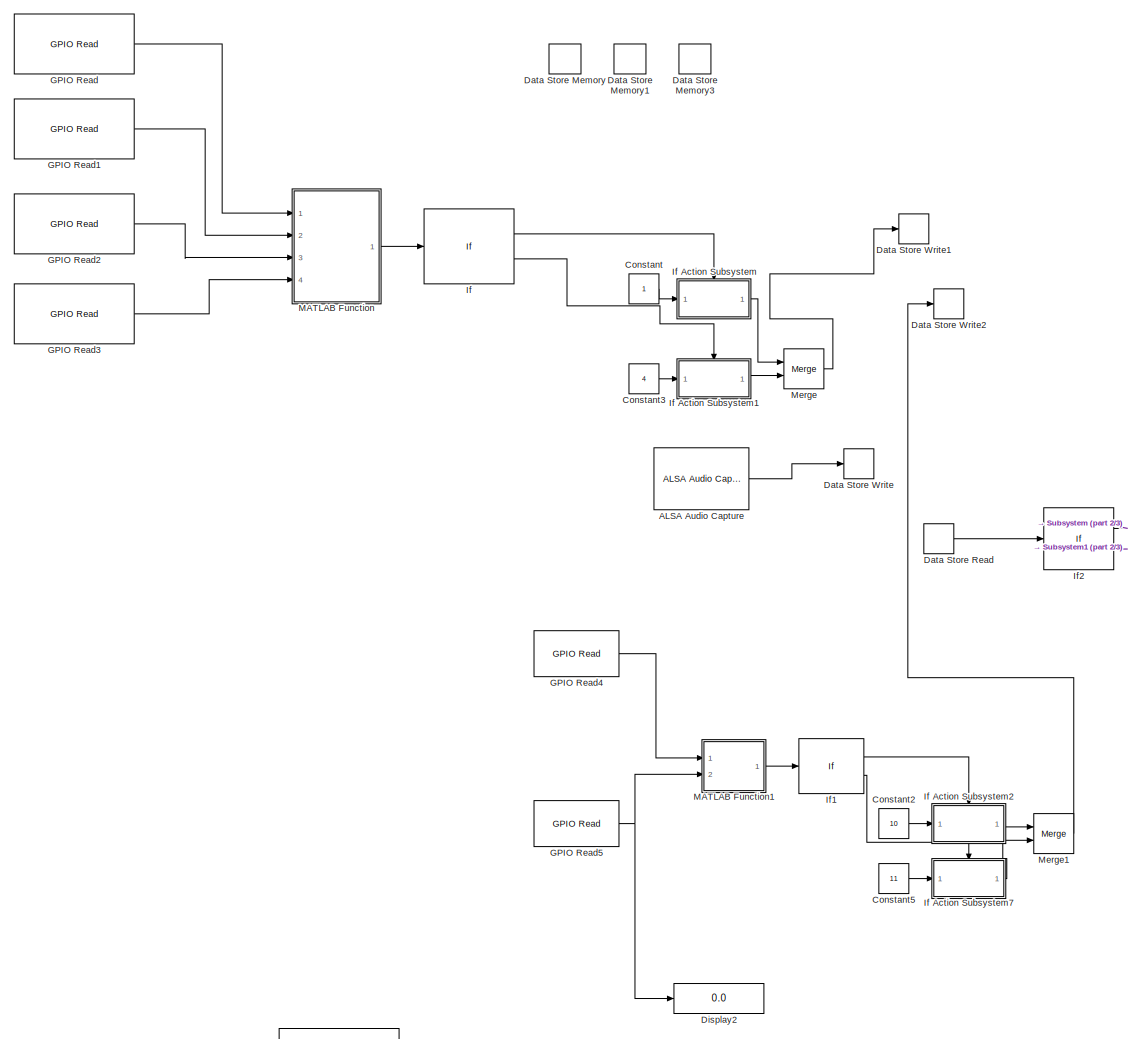
[diagram: root canvas - part 1/3, left side, full height]
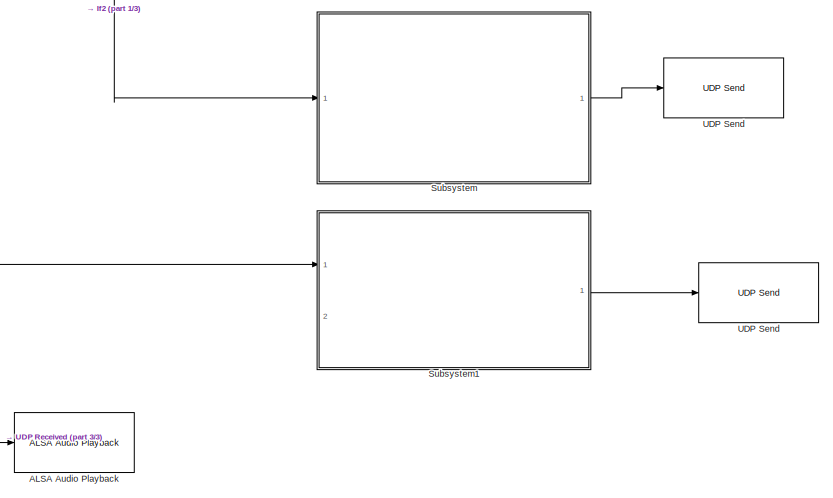
[diagram: root canvas - part 2/3, bottom right region]
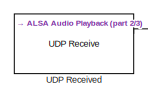
[diagram: root canvas - part 3/3, bottom left region]
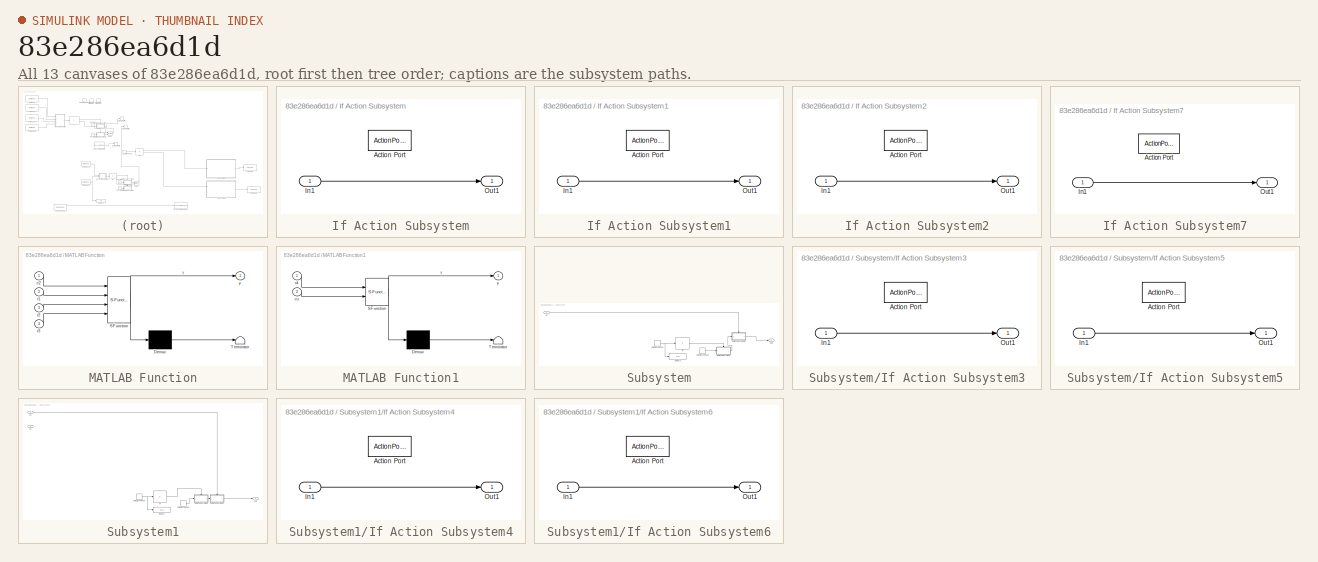
[diagram: thumbnail index - all 13 canvases of the model, root first then tree order]
MODEL slx_83e286ea6d1d
KIND model
CONFIG AbsTol = auto
CONFIG EnableMultiTasking = on
CONFIG FixedStep = auto
CONFIG MaxStep = auto
CONFIG MinStep = auto
CONFIG RelTol = 1e-3
CONFIG SampleTimeConstraint = Unconstrained
CONFIG Solver = FixedStepAuto
CONFIG SolverName = FixedStepAuto
CONFIG StartTime = 0.0
CONFIG StopTime = 10
BLOCK [Reference] ALSA Audio Capture  REF=embdlinuxlib/ALSA Audio Capture
  Ports = [0, 1]
  SourceBlock = embdlinuxlib/ALSA Audio Capture
  SourceProductBaseCode = RASPPI
  SourceProductName = Simulink Support Package for Raspberry Pi Hardware
  SourceType = codertarget.linux.blocks.ALSAAudioCapture
BLOCK [Reference] ALSA Audio Playback  REF=embdlinuxlib/ALSA Audio Playback
  Ports = [1]
  SourceBlock = embdlinuxlib/ALSA Audio Playback
  SourceProductBaseCode = RASPPI
  SourceProductName = Simulink Support Package for Raspberry Pi Hardware
  SourceType = codertarget.linux.blocks.ALSAAudioPlayback
BLOCK [Constant] Constant
BLOCK [Constant] Constant2
  Value = 10
BLOCK [Constant] Constant3
  Value = 4
BLOCK [Constant] Constant5
  Value = 11
BLOCK [DataStoreMemory] Data Store Memory
  ReadBeforeWriteMsg = warning
  ShowAdditionalParam = off
  WriteAfterReadMsg = warning
  WriteAfterWriteMsg = warning
BLOCK [DataStoreMemory] Data Store Memory1
  DataStoreName = A1
  ReadBeforeWriteMsg = warning
  ShowAdditionalParam = off
  WriteAfterReadMsg = warning
  WriteAfterWriteMsg = warning
BLOCK [DataStoreMemory] Data Store Memory3
  DataStoreName = A3
  Dimensions = [4410,1]
  ReadBeforeWriteMsg = warning
  ShowAdditionalParam = off
  WriteAfterReadMsg = warning
  WriteAfterWriteMsg = warning
BLOCK [DataStoreRead] Data Store Read
  Ports = [0, 1]
BLOCK [DataStoreWrite] Data Store Write
  DataStoreName = A3
  Ports = [1]
BLOCK [DataStoreWrite] Data Store Write1
  Ports = [1]
BLOCK [DataStoreWrite] Data Store Write2
  DataStoreName = A1
  Ports = [1]
BLOCK [Display] Display2
  Decimation = 1
  Ports = [1]
BLOCK [Reference] GPIO Read  REF=embdlinuxlib/GPIO Read
  Ports = [0, 1]
  SourceBlock = embdlinuxlib/GPIO Read
  SourceProductBaseCode = RASPPI
  SourceProductName = Simulink Support Package for Raspberry Pi Hardware
  SourceType = GPIO Read
BLOCK [Reference] GPIO Read1  REF=embdlinuxlib/GPIO Read
  Ports = [0, 1]
  SourceBlock = embdlinuxlib/GPIO Read
  SourceProductBaseCode = RASPPI
  SourceProductName = Simulink Support Package for Raspberry Pi Hardware
  SourceType = GPIO Read
BLOCK [Reference] GPIO Read2  REF=embdlinuxlib/GPIO Read
  Ports = [0, 1]
  SourceBlock = embdlinuxlib/GPIO Read
  SourceProductBaseCode = RASPPI
  SourceProductName = Simulink Support Package for Raspberry Pi Hardware
  SourceType = GPIO Read
BLOCK [Reference] GPIO Read3  REF=embdlinuxlib/GPIO Read
  Ports = [0, 1]
  SourceBlock = embdlinuxlib/GPIO Read
  SourceProductBaseCode = RASPPI
  SourceProductName = Simulink Support Package for Raspberry Pi Hardware
  SourceType = GPIO Read
BLOCK [Reference] GPIO Read4  REF=embdlinuxlib/GPIO Read
  Ports = [0, 1]
  SourceBlock = embdlinuxlib/GPIO Read
  SourceProductBaseCode = RASPPI
  SourceProductName = Simulink Support Package for Raspberry Pi Hardware
  SourceType = GPIO Read
BLOCK [Reference] GPIO Read5  REF=embdlinuxlib/GPIO Read
  Ports = [0, 1]
  SourceBlock = embdlinuxlib/GPIO Read
  SourceProductBaseCode = RASPPI
  SourceProductName = Simulink Support Package for Raspberry Pi Hardware
  SourceType = GPIO Read
BLOCK [If] If
  ElseIfExpressions = u1 == 4
  IfExpression = u1 == 1
  Ports = [1, 2]
  ShowElse = off
BLOCK [SubSystem] If Action Subsystem
  Ports = [1, 1, 0, 0, 0, 0, 0, 1]
  RequestExecContextInheritance = off
  TreatAsAtomicUnit = on
BLOCK [ActionPort] If Action Subsystem/Action Port
  ActionType = then
  InitializeStates = reset
BLOCK [Inport] If Action Subsystem/In1
  IconDisplay = Port number
BLOCK [Outport] If Action Subsystem/Out1
  IconDisplay = Port number
BLOCK [SubSystem] If Action Subsystem1
  Ports = [1, 1, 0, 0, 0, 0, 0, 1]
  RequestExecContextInheritance = off
  TreatAsAtomicUnit = on
BLOCK [ActionPort] If Action Subsystem1/Action Port
  ActionType = elseif
  InitializeStates = reset
BLOCK [Inport] If Action Subsystem1/In1
  IconDisplay = Port number
BLOCK [Outport] If Action Subsystem1/Out1
  IconDisplay = Port number
BLOCK [SubSystem] If Action Subsystem2
  Ports = [1, 1, 0, 0, 0, 0, 0, 1]
  RequestExecContextInheritance = off
  TreatAsAtomicUnit = on
BLOCK [ActionPort] If Action Subsystem2/Action Port
  ActionType = then
  InitializeStates = reset
BLOCK [Inport] If Action Subsystem2/In1
  IconDisplay = Port number
BLOCK [Outport] If Action Subsystem2/Out1
  IconDisplay = Port number
BLOCK [SubSystem] If Action Subsystem7
  Ports = [1, 1, 0, 0, 0, 0, 0, 1]
  RequestExecContextInheritance = off
  TreatAsAtomicUnit = on
BLOCK [ActionPort] If Action Subsystem7/Action Port
  ActionType = elseif
  InitializeStates = reset
BLOCK [Inport] If Action Subsystem7/In1
  IconDisplay = Port number
BLOCK [Outport] If Action Subsystem7/Out1
  IconDisplay = Port number
BLOCK [If] If1
  ElseIfExpressions = u1 == 11
  IfExpression = u1 == 10
  Ports = [1, 2]
  ShowElse = off
BLOCK [If] If2
  ElseIfExpressions = u1 == 4
  IfExpression = u1 == 1
  Ports = [1, 2]
  ShowElse = off
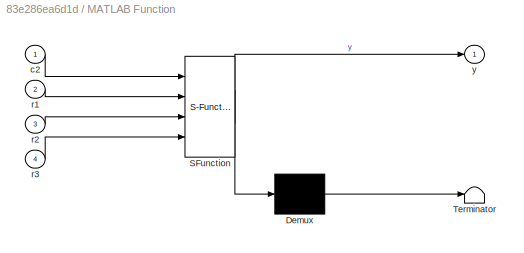
BLOCK [SubSystem] MATLAB Function
  ErrorFcn = Stateflow.Translate.translate
  PermitHierarchicalResolution = ExplicitOnly
  Ports = [4, 1]
  RequestExecContextInheritance = off
  SFBlockType = MATLAB Function
  TreatAsAtomicUnit = on
BLOCK [Demux] MATLAB Function/ Demux 
  Outputs = 1
  Ports = [1, 1]
BLOCK [S-Function] MATLAB Function/ SFunction 
  EnableBusSupport = on
  FunctionName = sf_sfun
  PortCounts = [4 2]
  Ports = [4, 2]
  SFcnIsStateOwnerBlock = off
  SFunctionDeploymentMode = off
  Tag = Stateflow S-Function untitled1 2
BLOCK [Terminator] MATLAB Function/ Terminator 
BLOCK [Inport] MATLAB Function/c2
  IconDisplay = Port number
BLOCK [Inport] MATLAB Function/r1
  IconDisplay = Port number
  Port = 2
BLOCK [Inport] MATLAB Function/r2
  IconDisplay = Port number
  Port = 3
BLOCK [Inport] MATLAB Function/r3
  IconDisplay = Port number
  Port = 4
BLOCK [Outport] MATLAB Function/y
  IconDisplay = Port number
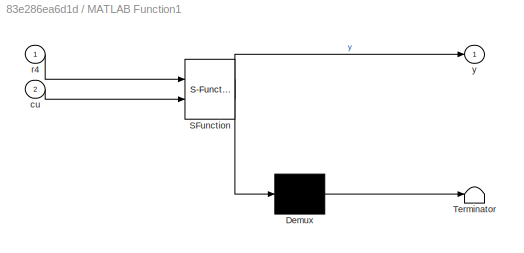
BLOCK [SubSystem] MATLAB Function1
  ErrorFcn = Stateflow.Translate.translate
  PermitHierarchicalResolution = ExplicitOnly
  Ports = [2, 1]
  RequestExecContextInheritance = off
  SFBlockType = MATLAB Function
  TreatAsAtomicUnit = on
BLOCK [Demux] MATLAB Function1/ Demux 
  Outputs = 1
  Ports = [1, 1]
BLOCK [S-Function] MATLAB Function1/ SFunction 
  EnableBusSupport = on
  FunctionName = sf_sfun
  PortCounts = [2 2]
  Ports = [2, 2]
  SFcnIsStateOwnerBlock = off
  SFunctionDeploymentMode = off
  Tag = Stateflow S-Function untitled1 1
BLOCK [Terminator] MATLAB Function1/ Terminator 
BLOCK [Inport] MATLAB Function1/cu
  IconDisplay = Port number
  Port = 2
BLOCK [Inport] MATLAB Function1/r4
  IconDisplay = Port number
BLOCK [Outport] MATLAB Function1/y
  IconDisplay = Port number
BLOCK [Merge] Merge
  Ports = [2, 1]
BLOCK [Merge] Merge1
  Ports = [2, 1]
BLOCK [SubSystem] Subsystem
  Ports = [1, 1]
  RequestExecContextInheritance = off
BLOCK [DataStoreRead] Subsystem/Data Store Read1
  DataStoreName = A1
  Ports = [0, 1]
BLOCK [DataStoreRead] Subsystem/Data Store Read3
  DataStoreName = A3
  Ports = [0, 1]
BLOCK [Display] Subsystem/Display3
  Decimation = 1
  Ports = [1]
BLOCK [SubSystem] Subsystem/If Action Subsystem3
  Ports = [1, 1, 0, 0, 0, 0, 0, 1]
  RequestExecContextInheritance = off
  TreatAsAtomicUnit = on
BLOCK [ActionPort] Subsystem/If Action Subsystem3/Action Port
  ActionType = then
  InitializeStates = reset
BLOCK [Inport] Subsystem/If Action Subsystem3/In1
  IconDisplay = Port number
BLOCK [Outport] Subsystem/If Action Subsystem3/Out1
  IconDisplay = Port number
BLOCK [SubSystem] Subsystem/If Action Subsystem5
  Ports = [1, 1, 0, 0, 0, 0, 0, 1]
  RequestExecContextInheritance = off
  TreatAsAtomicUnit = on
BLOCK [ActionPort] Subsystem/If Action Subsystem5/Action Port
  ActionType = then
  InitializeStates = reset
BLOCK [Inport] Subsystem/If Action Subsystem5/In1
  IconDisplay = Port number
BLOCK [Outport] Subsystem/If Action Subsystem5/Out1
  IconDisplay = Port number
BLOCK [If] Subsystem/If3
  IfExpression = u1 == 10
  Ports = [1, 1]
  ShowElse = off
BLOCK [Inport] Subsystem/In1
  IconDisplay = Port number
BLOCK [Outport] Subsystem/Out1
  IconDisplay = Port number
BLOCK [SubSystem] Subsystem1
  Ports = [2, 1]
  RequestExecContextInheritance = off
BLOCK [DataStoreRead] Subsystem1/Data Store Read2
  DataStoreName = A1
  Ports = [0, 1]
BLOCK [DataStoreRead] Subsystem1/Data Store Read4
  DataStoreName = A3
  Ports = [0, 1]
BLOCK [Display] Subsystem1/Display4
  Decimation = 1
  Ports = [1]
BLOCK [SubSystem] Subsystem1/If Action Subsystem4
  Ports = [1, 1, 0, 0, 0, 0, 0, 1]
  RequestExecContextInheritance = off
  TreatAsAtomicUnit = on
BLOCK [ActionPort] Subsystem1/If Action Subsystem4/Action Port
  ActionType = elseif
  InitializeStates = reset
BLOCK [Inport] Subsystem1/If Action Subsystem4/In1
  IconDisplay = Port number
BLOCK [Outport] Subsystem1/If Action Subsystem4/Out1
  IconDisplay = Port number
BLOCK [SubSystem] Subsystem1/If Action Subsystem6
  Ports = [1, 1, 0, 0, 0, 0, 0, 1]
  RequestExecContextInheritance = off
  TreatAsAtomicUnit = on
BLOCK [ActionPort] Subsystem1/If Action Subsystem6/Action Port
  ActionType = then
  InitializeStates = reset
BLOCK [Inport] Subsystem1/If Action Subsystem6/In1
  IconDisplay = Port number
BLOCK [Outport] Subsystem1/If Action Subsystem6/Out1
  IconDisplay = Port number
BLOCK [If] Subsystem1/If4
  IfExpression = u1 == 10
  Ports = [1, 1]
  ShowElse = off
BLOCK [Inport] Subsystem1/In1
  IconDisplay = Port number
BLOCK [Inport] Subsystem1/In2
  IconDisplay = Port number
  Port = 2
BLOCK [Outport] Subsystem1/Out1
  IconDisplay = Port number
BLOCK [Reference] UDP Received  REF=embdlinuxlib/UDP Receive
  Ports = [0, 2]
  SourceBlock = embdlinuxlib/UDP Receive
  SourceProductBaseCode = RASPPI
  SourceProductName = Simulink Support Package for Raspberry Pi Hardware
  SourceType = UDP Receive
BLOCK [Reference] UDP Send  REF=embdlinuxlib/UDP Send
  Ports = [1]
  SourceBlock = embdlinuxlib/UDP Send
  SourceProductBaseCode = RASPPI
  SourceProductName = Simulink Support Package for Raspberry Pi Hardware
  SourceType = UDP Send
BLOCK [Reference] UDP Send   REF=embdlinuxlib/UDP Send
  Ports = [1]
  SourceBlock = embdlinuxlib/UDP Send
  SourceProductBaseCode = RASPPI
  SourceProductName = Simulink Support Package for Raspberry Pi Hardware
  SourceType = UDP Send
LINE ALSA Audio Capture:1 -> Data Store Write:1
LINE Constant2:1 -> If Action Subsystem2:1
LINE Constant3:1 -> If Action Subsystem1:1
LINE Constant5:1 -> If Action Subsystem7:1
LINE Constant:1 -> If Action Subsystem:1
LINE Data Store Read:1 -> If2:1
LINE GPIO Read1:1 -> MATLAB Function:2
LINE GPIO Read2:1 -> MATLAB Function:3
LINE GPIO Read3:1 -> MATLAB Function:4
LINE GPIO Read4:1 -> MATLAB Function1:1
NET GPIO Read5:1 -> Display2:1, MATLAB Function1:2
LINE GPIO Read:1 -> MATLAB Function:1
LINE If Action Subsystem/In1:1 -> If Action Subsystem/Out1:1
LINE If Action Subsystem1/In1:1 -> If Action Subsystem1/Out1:1
LINE If Action Subsystem1:1 -> Merge:2
LINE If Action Subsystem2/In1:1 -> If Action Subsystem2/Out1:1
LINE If Action Subsystem2:1 -> Merge1:1
LINE If Action Subsystem7/In1:1 -> If Action Subsystem7/Out1:1
LINE If Action Subsystem7:1 -> Merge1:2
LINE If Action Subsystem:1 -> Merge:1
LINE If1:1 -> If Action Subsystem2:ifaction
LINE If1:2 -> If Action Subsystem7:ifaction
LINE If2:1 -> Subsystem:1
LINE If2:2 -> Subsystem1:1
LINE If:1 -> If Action Subsystem:ifaction
LINE If:2 -> If Action Subsystem1:ifaction
LINE MATLAB Function1:1 -> If1:1
LINE MATLAB Function:1 -> If:1
LINE Merge1:1 -> Data Store Write2:1
LINE Merge:1 -> Data Store Write1:1
NET Subsystem/Data Store Read1:1 -> Subsystem/Display3:1, Subsystem/If3:1
LINE Subsystem/Data Store Read3:1 -> Subsystem/If Action Subsystem5:1
LINE Subsystem/If Action Subsystem3/In1:1 -> Subsystem/If Action Subsystem3/Out1:1
LINE Subsystem/If Action Subsystem3:1 -> Subsystem/Out1:1
LINE Subsystem/If Action Subsystem5/In1:1 -> Subsystem/If Action Subsystem5/Out1:1
LINE Subsystem/If Action Subsystem5:1 -> Subsystem/If Action Subsystem3:1
LINE Subsystem/If3:1 -> Subsystem/If Action Subsystem5:ifaction
LINE Subsystem/In1:1 -> Subsystem/If Action Subsystem3:ifaction
NET Subsystem1/Data Store Read2:1 -> Subsystem1/Display4:1, Subsystem1/If4:1
LINE Subsystem1/Data Store Read4:1 -> Subsystem1/If Action Subsystem6:1
LINE Subsystem1/If Action Subsystem4/In1:1 -> Subsystem1/If Action Subsystem4/Out1:1
LINE Subsystem1/If Action Subsystem4:1 -> Subsystem1/Out1:1
LINE Subsystem1/If Action Subsystem6/In1:1 -> Subsystem1/If Action Subsystem6/Out1:1
LINE Subsystem1/If Action Subsystem6:1 -> Subsystem1/If Action Subsystem4:1
LINE Subsystem1/If4:1 -> Subsystem1/If Action Subsystem6:ifaction
LINE Subsystem1/In1:1 -> Subsystem1/If Action Subsystem4:ifaction
LINE Subsystem1:1 -> UDP Send:1
LINE Subsystem:1 -> UDP Send :1
LINE UDP Received:1 -> ALSA Audio Playback:1
note: NET lines group one-source signal fan-out (src -> all destinations, sorted); 1:1 wires keep LINE
CHART MATLAB Function1 states=1 transitions=1
  STATE_LABEL 'eML_blk_kernel()'
  STATE_LABEL 'SCRIPT:\nfunction y = fcn(r4,cu)\nif(r4==logical(1))\n    y=10;\nelseif(cu==logical(1))\n    y=11;\nelse\n   y=50;\nend\n\n'
CHART MATLAB Function states=1 transitions=1
  STATE_LABEL 'eML_blk_kernel()'
  STATE_LABEL 'SCRIPT:\nfunction y = fcn(c2,r1,r2,r3)\nif(c2==logical(1) && r2==logical(1))\n    y=1;\nelseif(c2==logical(1) && r1==logical(1))\n    y=4;\nelseif(c2==logical(1) && r3==logical(1))\n    y=7;  \nelse\n   y=50;\nend\n\n'
